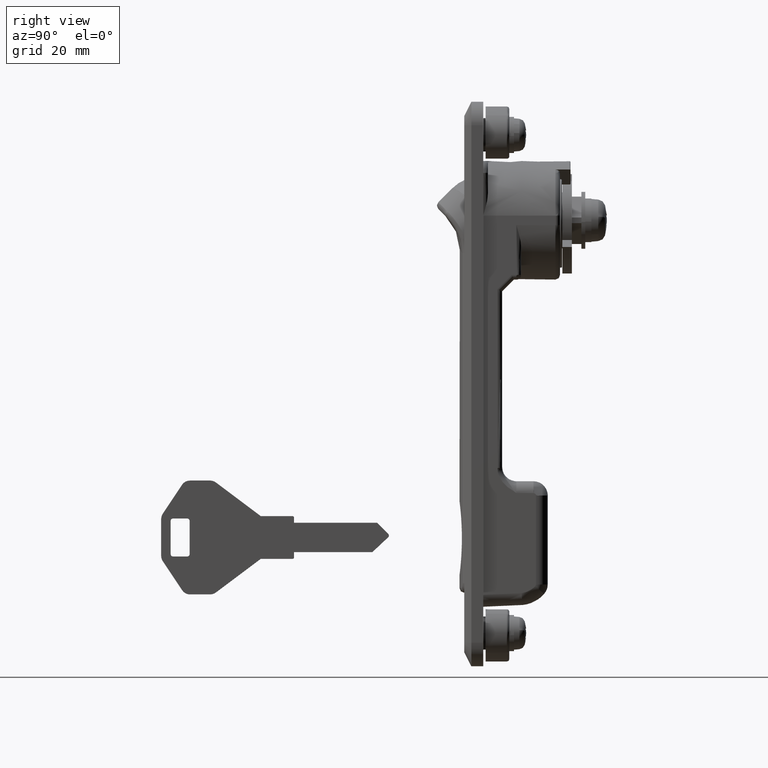
[diagram: clean part render]
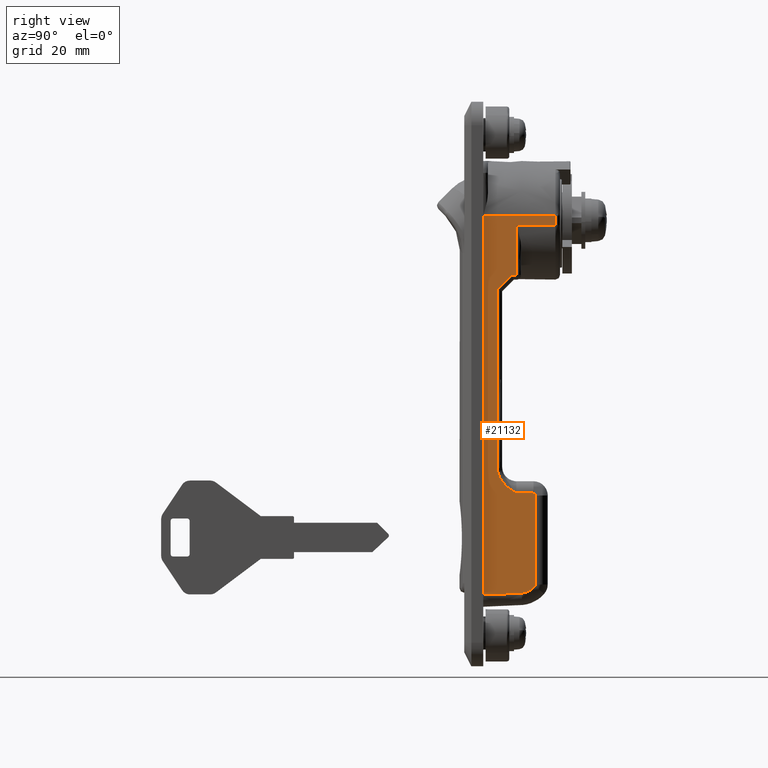
[diagram: same view with one face highlighted and labeled with its STEP entity id]
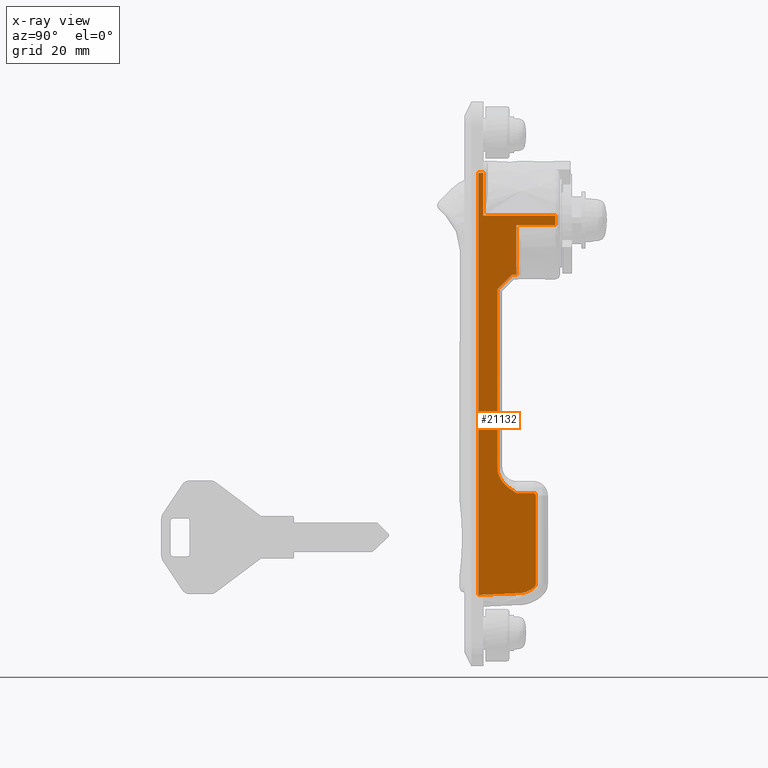
[diagram: x-ray of the same camera — body ghosted, the highlighted face saturated]
A machine part, right view. The second image highlights one B-rep face of the part: STEP entity #21132.
The next image is the same camera in x-ray: the body ghosted, the highlighted face saturated — about 0% of this face is hidden behind the body in this view.
In plain terms, the highlighted face is a freeform B-spline surface patch.
Its self-contained STEP definition (entity closure, byte-faithful):
#15641=CARTESIAN_POINT('',(8.0,-11.500000000000121,-57.500000000000000));
#15642=VERTEX_POINT('',#15641);
#15643=CARTESIAN_POINT('',(4.0,-11.500000000000121,-52.208497377870998));
#15644=VERTEX_POINT('',#15643);
#15645=CARTESIAN_POINT('',(8.0,-11.500000000000121,-57.500000000000000));
#15646=CARTESIAN_POINT('',(7.969130673970745,-11.500000000000121,-57.481096412405343));
#15647=CARTESIAN_POINT('',(7.937974806305518,-11.500000000000000,-57.462017489735601));
#15648=CARTESIAN_POINT('',(7.875901611696426,-11.500000000000000,-57.423977278645602));
#15649=CARTESIAN_POINT('',(7.782810793043212,-11.500000000000000,-57.366886129903207));
#15650=CARTESIAN_POINT('',(7.689833891631004,-11.500000000000000,-57.309609862286322));
#15651=CARTESIAN_POINT('',(7.504183184958484,-11.500000000000000,-57.194564786871858));
#15652=CARTESIAN_POINT('',(7.380825985567471,-11.500000000000000,-57.117213357005902));
#15653=CARTESIAN_POINT('',(7.013211945717965,-11.500000000000000,-56.881282857850181));
#15654=CARTESIAN_POINT('',(6.771575963276032,-11.500000000000000,-56.718887044286248));
#15655=CARTESIAN_POINT('',(6.419288698598739,-11.500000000000000,-56.460711541892110));
#15656=CARTESIAN_POINT('',(6.303579775447990,-11.500000000000000,-56.372237137580903));
#15657=CARTESIAN_POINT('',(6.077550788619782,-11.500000000000000,-56.190421930667938));
#15658=CARTESIAN_POINT('',(5.967082464897677,-11.500000000000000,-56.096976619177859));
#15659=CARTESIAN_POINT('',(5.644449934997925,-11.500000000000000,-55.807897396800712));
#15660=CARTESIAN_POINT('',(5.441051319863052,-11.500000000000000,-55.603527025465411));
#15661=CARTESIAN_POINT('',(5.157760529948014,-11.500000000000000,-55.275236807085101));
#15662=CARTESIAN_POINT('',(5.066963613870999,-11.500000000000000,-55.162185461727447));
#15663=CARTESIAN_POINT('',(4.936807790217729,-11.500000000000000,-54.986588964401847));
#15664=CARTESIAN_POINT('',(4.894343348183648,-11.500000000000000,-54.926922582685300));
#15665=CARTESIAN_POINT('',(4.812045639956472,-11.500000000000000,-54.806226126503560));
#15666=CARTESIAN_POINT('',(4.772215913928964,-11.500000000000000,-54.745215018055312));
#15667=CARTESIAN_POINT('',(4.579774108379183,-11.500000000000011,-54.436789202429331));
#15668=CARTESIAN_POINT('',(4.447183803077389,-11.500000000000011,-54.179313273001320));
#15669=CARTESIAN_POINT('',(4.310716102949145,-11.500000000000000,-53.842759684646310));
#15670=CARTESIAN_POINT('',(4.284893079798264,-11.500000000000000,-53.774710011629161));
#15671=CARTESIAN_POINT('',(4.236286354011037,-11.500000000000000,-53.637083364425138));
#15672=CARTESIAN_POINT('',(4.213457825414475,-11.500000000000000,-53.567343405942950));
#15673=CARTESIAN_POINT('',(4.150210763630238,-11.500000000000000,-53.357499301955819));
#15674=CARTESIAN_POINT('',(4.114893133432541,-11.500000000000000,-53.216511496310559));
#15675=CARTESIAN_POINT('',(4.029571784867293,-11.500000000000000,-52.790258471033511));
#15676=CARTESIAN_POINT('',(4.000000000000013,-11.500000000000121,-52.501735469759268));
#15677=CARTESIAN_POINT('',(4.0,-11.500000000000121,-52.208497377870998));
#15678=B_SPLINE_CURVE_WITH_KNOTS('',3,(#15645,#15646,#15647,#15648,#15649,#15650,#15651,#15652,#15653,#15654,#15655,#15656,#15657,#15658,#15659,#15660,#15661,#15662,#15663,#15664,#15665,#15666,#15667,#15668,#15669,#15670,#15671,#15672,#15673,#15674,#15675,#15676,#15677),.UNSPECIFIED.,.F.,.U.,(4,2,1,2,2,2,2,2,2,2,2,2,2,2,2,2,4),(0.0,0.015625000000000,0.031250000000001,0.062500000000001,0.125000000000001,0.250000000000003,0.312500000000003,0.375000000000004,0.500000000000005,0.562500000000006,0.593750000000005,0.625000000000004,0.750000000000000,0.781249999999999,0.812499999999998,0.874999999999999,1.0),.UNSPECIFIED.);
#15679=EDGE_CURVE('',#15642,#15644,#15678,.T.);
#15750=CARTESIAN_POINT('',(4.0,-11.500000000000121,-14.536248437627000));
#15751=VERTEX_POINT('',#15750);
#15765=CARTESIAN_POINT('',(4.0,-11.500000000000121,-52.208497377870998));
#15766=CARTESIAN_POINT('',(4.0,-11.500000000000121,-14.536248437627000));
#15767=QUASI_UNIFORM_CURVE('',1,(#15765,#15766),.UNSPECIFIED.,.F.,.U.);
#15768=EDGE_CURVE('',#15644,#15751,#15767,.T.);
#15795=CARTESIAN_POINT('',(7.036248437627011,-11.500000000000121,-11.500000000000000));
#15796=VERTEX_POINT('',#15795);
#15810=CARTESIAN_POINT('',(4.0,-11.500000000000121,-14.536248437627000));
#15811=CARTESIAN_POINT('',(7.036248437627011,-11.500000000000121,-11.500000000000000));
#15812=QUASI_UNIFORM_CURVE('',1,(#15810,#15811),.UNSPECIFIED.,.F.,.U.);
#15813=EDGE_CURVE('',#15751,#15796,#15812,.T.);
#15840=CARTESIAN_POINT('',(8.0,-11.500000000000121,-11.500000000000000));
#15841=VERTEX_POINT('',#15840);
#15855=CARTESIAN_POINT('',(7.036248437627011,-11.500000000000121,-11.500000000000000));
#15856=CARTESIAN_POINT('',(8.0,-11.500000000000121,-11.500000000000000));
#15857=QUASI_UNIFORM_CURVE('',1,(#15855,#15856),.UNSPECIFIED.,.F.,.U.);
#15858=EDGE_CURVE('',#15796,#15841,#15857,.T.);
#15947=CARTESIAN_POINT('',(8.0,-11.500000000000121,-1.0));
#15948=VERTEX_POINT('',#15947);
#15973=CARTESIAN_POINT('',(8.0,-11.500000000000121,-11.500000000000000));
#15974=CARTESIAN_POINT('',(8.0,-11.500000000000121,-1.0));
#15975=QUASI_UNIFORM_CURVE('',1,(#15973,#15974),.UNSPECIFIED.,.F.,.U.);
#15976=EDGE_CURVE('',#15841,#15948,#15975,.T.);
#16613=CARTESIAN_POINT('',(12.100000000000000,-11.500000000000121,-58.0));
#16614=VERTEX_POINT('',#16613);
#16645=CARTESIAN_POINT('',(11.600000000000000,-11.500000000000121,-57.500000000000000));
#16646=VERTEX_POINT('',#16645);
#16660=CARTESIAN_POINT('',(12.100000000000000,-11.500000000000121,-58.0));
#16661=CARTESIAN_POINT('',(12.099999999999998,-11.500000000000119,-57.499999999999986));
#16662=CARTESIAN_POINT('',(11.600000000000000,-11.500000000000121,-57.500000000000000));
#16670=(BOUNDED_CURVE()B_SPLINE_CURVE(2,(#16660,#16661,#16662),.UNSPECIFIED.,.F.,.U.)CURVE()GEOMETRIC_REPRESENTATION_ITEM()QUASI_UNIFORM_CURVE()RATIONAL_B_SPLINE_CURVE((1.0,0.707106781186548,1.0))REPRESENTATION_ITEM(''));
#16671=EDGE_CURVE('',#16614,#16646,#16670,.T.);
#16690=CARTESIAN_POINT('',(12.100000000000000,-11.500000000000121,-76.757086000000101));
#16691=VERTEX_POINT('',#16690);
#16713=CARTESIAN_POINT('',(12.100000000000000,-11.500000000000121,-76.757086000000101));
#16714=CARTESIAN_POINT('',(12.100000000000000,-11.500000000000121,-58.0));
#16715=QUASI_UNIFORM_CURVE('',1,(#16713,#16714),.UNSPECIFIED.,.F.,.U.);
#16716=EDGE_CURVE('',#16691,#16614,#16715,.T.);
#16754=CARTESIAN_POINT('',(11.975000000630800,-11.500000000000121,-77.087804913168000));
#16755=VERTEX_POINT('',#16754);
#16787=CARTESIAN_POINT('',(11.975000000630761,-11.500000000000121,-77.087804913167957));
#16788=CARTESIAN_POINT('',(12.099999999999996,-11.500000000000115,-76.946068235959785));
#16789=CARTESIAN_POINT('',(12.100000000000000,-11.500000000000121,-76.757086000000101));
#16797=(BOUNDED_CURVE()B_SPLINE_CURVE(2,(#16787,#16788,#16789),.UNSPECIFIED.,.F.,.U.)CURVE()GEOMETRIC_REPRESENTATION_ITEM()QUASI_UNIFORM_CURVE()RATIONAL_B_SPLINE_CURVE((1.0,0.935414347030640,1.0))REPRESENTATION_ITEM(''));
#16798=EDGE_CURVE('',#16755,#16691,#16797,.T.);
#16822=CARTESIAN_POINT('',(9.059060420484670,-11.500000000000121,-78.587858764181703));
#16823=VERTEX_POINT('',#16822);
#16853=CARTESIAN_POINT('',(9.059060420484670,-11.500000000000121,-78.587858764181703));
#16854=CARTESIAN_POINT('',(10.810473825940612,-11.500000000000123,-78.408253928560413));
#16855=CARTESIAN_POINT('',(11.975000000630800,-11.500000000000121,-77.087804913168000));
#16863=(BOUNDED_CURVE()B_SPLINE_CURVE(2,(#16853,#16854,#16855),.UNSPECIFIED.,.F.,.U.)CURVE()GEOMETRIC_REPRESENTATION_ITEM()QUASI_UNIFORM_CURVE()RATIONAL_B_SPLINE_CURVE((1.0,0.931261819615408,1.0))REPRESENTATION_ITEM(''));
#16864=EDGE_CURVE('',#16823,#16755,#16863,.T.);
#17357=CARTESIAN_POINT('',(1.0,-11.500000000000121,10.0));
#17358=VERTEX_POINT('',#17357);
#17420=CARTESIAN_POINT('',(1.0,-11.500000000000121,1.0));
#17421=VERTEX_POINT('',#17420);
#17452=CARTESIAN_POINT('',(1.0,-11.500000000000121,1.0));
#17453=CARTESIAN_POINT('',(1.0,-11.500000000000121,10.0));
#17454=QUASI_UNIFORM_CURVE('',1,(#17452,#17453),.UNSPECIFIED.,.F.,.U.);
#17455=EDGE_CURVE('',#17421,#17358,#17454,.T.);
#17745=CARTESIAN_POINT('',(0.0,-11.500000000000121,-78.993670632525991));
#17746=VERTEX_POINT('',#17745);
#17747=CARTESIAN_POINT('',(-1.669671E-014,-11.500000000000121,-78.993670632525991));
#17748=CARTESIAN_POINT('',(4.541194883915591,-11.500000000000119,-79.051158717932751));
#17749=CARTESIAN_POINT('',(9.059060420484663,-11.500000000000121,-78.587858764181760));
#17757=(BOUNDED_CURVE()B_SPLINE_CURVE(2,(#17747,#17748,#17749),.UNSPECIFIED.,.F.,.U.)CURVE()GEOMETRIC_REPRESENTATION_ITEM()QUASI_UNIFORM_CURVE()RATIONAL_B_SPLINE_CURVE((1.0,0.998351644607289,1.0))REPRESENTATION_ITEM(''));
#17758=EDGE_CURVE('',#17746,#16823,#17757,.T.);
#17931=CARTESIAN_POINT('',(11.600000000000000,-11.500000000000121,-57.500000000000000));
#17932=CARTESIAN_POINT('',(8.0,-11.500000000000121,-57.500000000000000));
#17933=QUASI_UNIFORM_CURVE('',1,(#17931,#17932),.UNSPECIFIED.,.F.,.U.);
#17934=EDGE_CURVE('',#16646,#15642,#17933,.T.);
#17954=CARTESIAN_POINT('',(0.0,-11.500000000000121,10.0));
#17955=VERTEX_POINT('',#17954);
#17956=CARTESIAN_POINT('',(1.0,-11.500000000000121,10.0));
#17957=CARTESIAN_POINT('',(0.0,-11.500000000000121,10.0));
#17958=QUASI_UNIFORM_CURVE('',1,(#17956,#17957),.UNSPECIFIED.,.F.,.U.);
#17959=EDGE_CURVE('',#17358,#17955,#17958,.T.);
#18193=CARTESIAN_POINT('',(16.199999999999999,-11.500000000000121,-1.0));
#18194=VERTEX_POINT('',#18193);
#18258=CARTESIAN_POINT('',(16.199999999999999,-11.500000000000000,1.0));
#18259=VERTEX_POINT('',#18258);
#18273=CARTESIAN_POINT('',(16.199999999999999,-11.500000000000121,-1.0));
#18274=CARTESIAN_POINT('',(16.199999999999999,-11.500000000000000,1.0));
#18275=QUASI_UNIFORM_CURVE('',1,(#18273,#18274),.UNSPECIFIED.,.F.,.U.);
#18276=EDGE_CURVE('',#18194,#18259,#18275,.T.);
#21086=CARTESIAN_POINT('',(16.199999999999999,-11.500000000000121,-1.0));
#21087=CARTESIAN_POINT('',(8.0,-11.500000000000121,-1.0));
#21088=QUASI_UNIFORM_CURVE('',1,(#21086,#21087),.UNSPECIFIED.,.F.,.U.);
#21089=EDGE_CURVE('',#18194,#15948,#21088,.T.);
#21100=CARTESIAN_POINT('',(-0.809189968601256,-11.500000000000121,-83.445494373320003));
#21101=CARTESIAN_POINT('',(-0.809189968601256,-11.500000000000121,14.445549576505170));
#21102=CARTESIAN_POINT('',(17.009190403119121,-11.500000000000121,-83.445494373320003));
#21103=CARTESIAN_POINT('',(17.009190403119121,-11.500000000000121,14.445549576505170));
#21104=B_SPLINE_SURFACE_WITH_KNOTS('',1,1,((#21100,#21102),(#21101,#21103)),.UNSPECIFIED.,.F.,.F.,.U.,(2,2),(2,2),(0.0,97.891043949825161),(0.0,17.818380371720380),.UNSPECIFIED.);
#21105=ORIENTED_EDGE('',*,*,#17934,.T.);
#21106=ORIENTED_EDGE('',*,*,#15679,.T.);
#21107=ORIENTED_EDGE('',*,*,#15768,.T.);
#21108=ORIENTED_EDGE('',*,*,#15813,.T.);
#21109=ORIENTED_EDGE('',*,*,#15858,.T.);
#21110=ORIENTED_EDGE('',*,*,#15976,.T.);
#21111=ORIENTED_EDGE('',*,*,#21089,.F.);
#21112=ORIENTED_EDGE('',*,*,#18276,.T.);
#21113=CARTESIAN_POINT('',(16.199999999999999,-11.500000000000000,1.0));
#21114=CARTESIAN_POINT('',(1.0,-11.500000000000121,1.0));
#21115=QUASI_UNIFORM_CURVE('',1,(#21113,#21114),.UNSPECIFIED.,.F.,.U.);
#21116=EDGE_CURVE('',#18259,#17421,#21115,.T.);
#21117=ORIENTED_EDGE('',*,*,#21116,.T.);
#21118=ORIENTED_EDGE('',*,*,#17455,.T.);
#21119=ORIENTED_EDGE('',*,*,#17959,.T.);
#21120=CARTESIAN_POINT('',(0.0,-11.500000000000121,10.0));
#21121=CARTESIAN_POINT('',(0.0,-11.500000000000121,-78.993670632525991));
#21122=QUASI_UNIFORM_CURVE('',1,(#21120,#21121),.UNSPECIFIED.,.F.,.U.);
#21123=EDGE_CURVE('',#17955,#17746,#21122,.T.);
#21124=ORIENTED_EDGE('',*,*,#21123,.T.);
#21125=ORIENTED_EDGE('',*,*,#17758,.T.);
#21126=ORIENTED_EDGE('',*,*,#16864,.T.);
#21127=ORIENTED_EDGE('',*,*,#16798,.T.);
#21128=ORIENTED_EDGE('',*,*,#16716,.T.);
#21129=ORIENTED_EDGE('',*,*,#16671,.T.);
#21130=EDGE_LOOP('',(#21105,#21106,#21107,#21108,#21109,#21110,#21111,#21112,#21117,#21118,#21119,#21124,#21125,#21126,#21127,#21128,#21129));
#21131=FACE_OUTER_BOUND('',#21130,.T.);
#21132=ADVANCED_FACE('',(#21131),#21104,.F.);